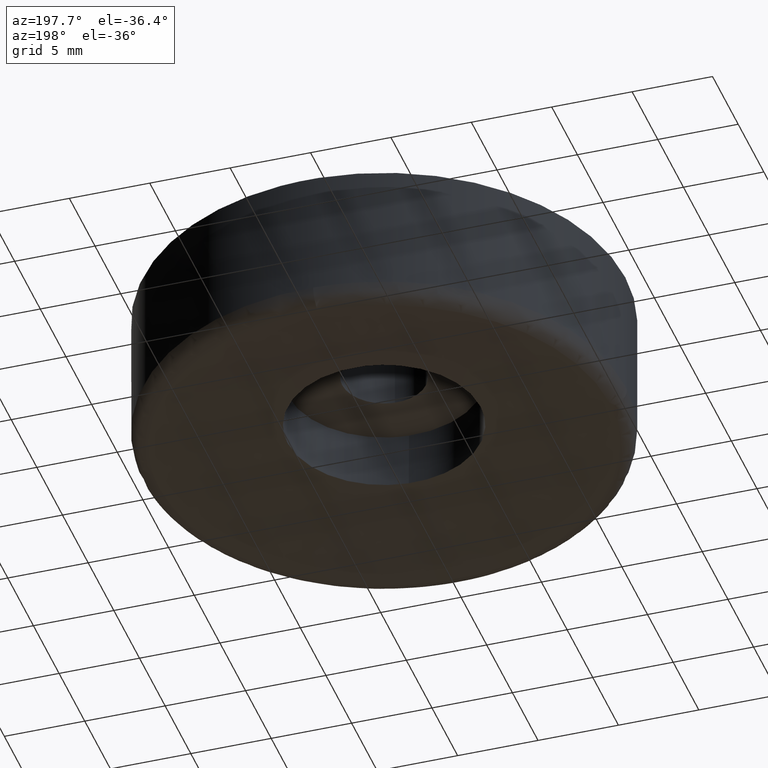
[diagram: clean part render]
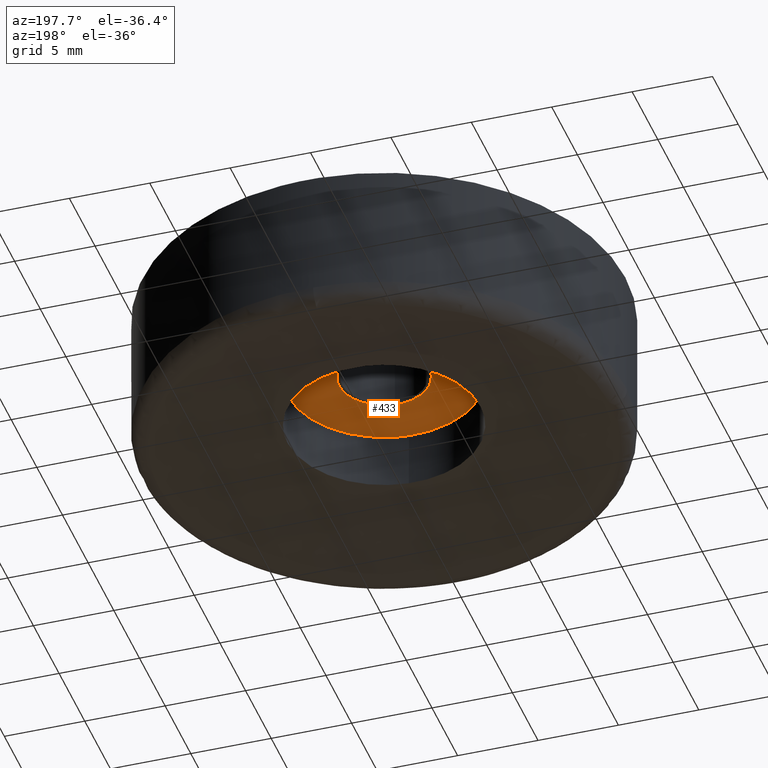
[diagram: same view with one face highlighted and labeled with its STEP entity id]
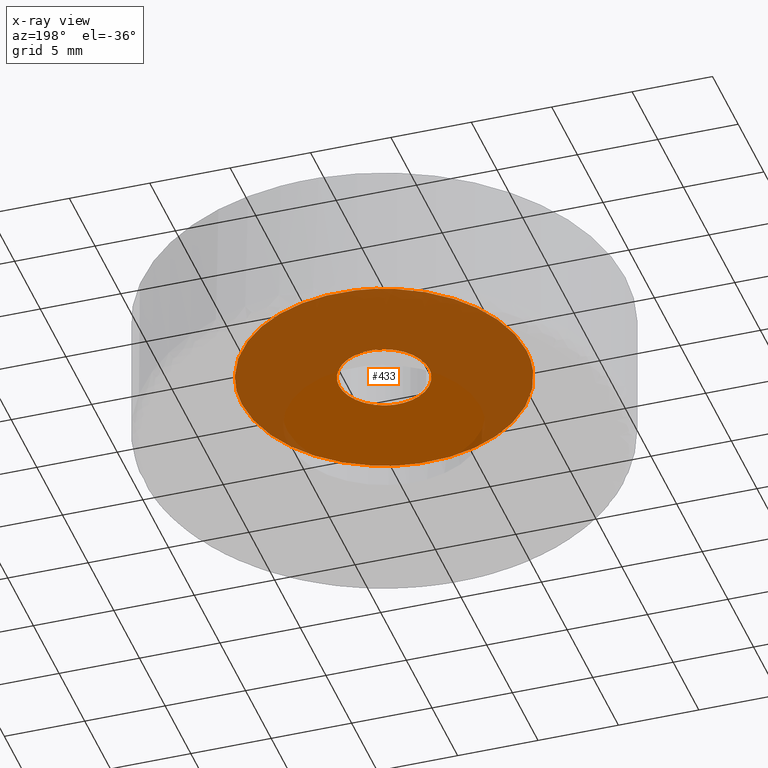
[diagram: x-ray of the same camera — body ghosted, the highlighted face saturated]
A machine part, auxiliary view. The second image highlights one B-rep face of the part: STEP entity #433.
The next image is the same camera in x-ray: the body ghosted, the highlighted face saturated — about 66% of this face is hidden behind the body in this view.
In plain terms, the highlighted face is a freeform B-spline surface patch.
Its self-contained STEP definition (entity closure, byte-faithful):
#66=CARTESIAN_POINT('',(-0.330495857061675,2.780426673815561,4.999999999999800));
#67=VERTEX_POINT('',#66);
#68=CARTESIAN_POINT('',(2.800000000000000,0.0,4.999999999999800));
#69=VERTEX_POINT('',#68);
#70=CARTESIAN_POINT('',(-0.330495857061675,2.780426673815561,4.999999999999801));
#71=CARTESIAN_POINT('',(-0.165827535048340,2.800000000000000,4.999999999999800));
#72=CARTESIAN_POINT('',(0.0,2.800000000000000,4.999999999999800));
#73=CARTESIAN_POINT('',(2.800000000000000,2.800000000000000,4.999999999999800));
#74=CARTESIAN_POINT('',(2.800000000000000,0.0,4.999999999999800));
#82=(BOUNDED_CURVE()B_SPLINE_CURVE(2,(#70,#71,#72,#73,#74),.UNSPECIFIED.,.F.,.U.)B_SPLINE_CURVE_WITH_KNOTS((3,2,3),(0.229562473512879,0.250000000000000,0.500000000000000),.UNSPECIFIED.)CURVE()GEOMETRIC_REPRESENTATION_ITEM()RATIONAL_B_SPLINE_CURVE((0.956026754182465,0.976055948330407,1.0,0.707106781186547,1.0))REPRESENTATION_ITEM(''));
#83=EDGE_CURVE('',#67,#69,#82,.T.);
#85=CARTESIAN_POINT('',(0.170935910712796,-2.794777435580298,4.999999999999799));
#86=VERTEX_POINT('',#85);
#87=CARTESIAN_POINT('',(2.800000000000000,0.0,4.999999999999800));
#88=CARTESIAN_POINT('',(2.799999999999999,-2.633976987307233,4.999999999999801));
#89=CARTESIAN_POINT('',(0.170935910712796,-2.794777435580297,4.999999999999799));
#97=(BOUNDED_CURVE()B_SPLINE_CURVE(2,(#87,#88,#89),.UNSPECIFIED.,.F.,.U.)B_SPLINE_CURVE_WITH_KNOTS((3,3),(0.500000000000000,0.739332962240091),.UNSPECIFIED.)CURVE()GEOMETRIC_REPRESENTATION_ITEM()RATIONAL_B_SPLINE_CURVE((1.0,0.719603993285365,0.976072041669178))REPRESENTATION_ITEM(''));
#98=EDGE_CURVE('',#69,#86,#97,.T.);
#165=CARTESIAN_POINT('',(-2.800000000000000,0.0,4.999999999999800));
#166=VERTEX_POINT('',#165);
#167=CARTESIAN_POINT('',(-2.800000000000000,0.0,4.999999999999800));
#168=CARTESIAN_POINT('',(-2.799999999999999,2.486888672622845,4.999999999999800));
#169=CARTESIAN_POINT('',(-0.330495857061675,2.780426673815561,4.999999999999800));
#177=(BOUNDED_CURVE()B_SPLINE_CURVE(2,(#167,#168,#169),.UNSPECIFIED.,.F.,.U.)B_SPLINE_CURVE_WITH_KNOTS((3,3),(0.0,0.229562473512879),.UNSPECIFIED.)CURVE()GEOMETRIC_REPRESENTATION_ITEM()RATIONAL_B_SPLINE_CURVE((1.0,0.731050832856140,0.956026754182465))REPRESENTATION_ITEM(''));
#178=EDGE_CURVE('',#166,#67,#177,.T.);
#212=CARTESIAN_POINT('',(0.170935910712796,-2.794777435580298,4.999999999999799));
#213=CARTESIAN_POINT('',(0.085547737251288,-2.800000000000001,4.999999999999801));
#214=CARTESIAN_POINT('',(0.0,-2.800000000000000,4.999999999999800));
#215=CARTESIAN_POINT('',(-2.800000000000000,-2.800000000000000,4.999999999999800));
#216=CARTESIAN_POINT('',(-2.800000000000000,0.0,4.999999999999800));
#224=(BOUNDED_CURVE()B_SPLINE_CURVE(2,(#212,#213,#214,#215,#216),.UNSPECIFIED.,.F.,.U.)B_SPLINE_CURVE_WITH_KNOTS((3,2,3),(0.739332962240092,0.750000000000000,1.0),.UNSPECIFIED.)CURVE()GEOMETRIC_REPRESENTATION_ITEM()RATIONAL_B_SPLINE_CURVE((0.976072041669180,0.987502787901183,1.0,0.707106781186547,1.0))REPRESENTATION_ITEM(''));
#225=EDGE_CURVE('',#86,#166,#224,.T.);
#252=CARTESIAN_POINT('',(-1.044592699997766,8.788135529849564,4.999999999999963));
#253=VERTEX_POINT('',#252);
#254=CARTESIAN_POINT('',(8.850000000000000,0.0,4.999999999999800));
#255=VERTEX_POINT('',#254);
#256=CARTESIAN_POINT('',(-1.044592699997766,8.788135529849564,4.999999999999963));
#257=CARTESIAN_POINT('',(-0.524128266240975,8.850000000000000,4.999999999999800));
#258=CARTESIAN_POINT('',(0.0,8.850000000000000,4.999999999999800));
#259=CARTESIAN_POINT('',(8.850000000000000,8.850000000000000,4.999999999999800));
#260=CARTESIAN_POINT('',(8.850000000000000,0.0,4.999999999999800));
#268=(BOUNDED_CURVE()B_SPLINE_CURVE(2,(#256,#257,#258,#259,#260),.UNSPECIFIED.,.F.,.U.)B_SPLINE_CURVE_WITH_KNOTS((3,2,3),(0.229562671145563,0.250000000000000,0.500000000000000),.UNSPECIFIED.)CURVE()GEOMETRIC_REPRESENTATION_ITEM()RATIONAL_B_SPLINE_CURVE((0.956027141550981,0.976056179871500,1.0,0.707106781186547,1.0))REPRESENTATION_ITEM(''));
#269=EDGE_CURVE('',#253,#255,#268,.T.);
#310=CARTESIAN_POINT('',(0.540268868188659,-8.833493620870005,4.999999999999591));
#311=VERTEX_POINT('',#310);
#317=CARTESIAN_POINT('',(8.850000000000000,0.0,4.999999999999800));
#318=CARTESIAN_POINT('',(8.849999999999998,-8.325258801650644,4.999999999999800));
#319=CARTESIAN_POINT('',(0.540268868188659,-8.833493620870005,4.999999999999591));
#327=(BOUNDED_CURVE()B_SPLINE_CURVE(2,(#317,#318,#319),.UNSPECIFIED.,.F.,.U.)B_SPLINE_CURVE_WITH_KNOTS((3,3),(0.500000000000000,0.739333171378503),.UNSPECIFIED.)CURVE()GEOMETRIC_REPRESENTATION_ITEM()RATIONAL_B_SPLINE_CURVE((1.0,0.719603748264474,0.976072489893016))REPRESENTATION_ITEM(''));
#328=EDGE_CURVE('',#255,#311,#327,.T.);
#351=CARTESIAN_POINT('',(-8.850000000000000,0.0,4.999999999999800));
#352=VERTEX_POINT('',#351);
#353=CARTESIAN_POINT('',(-8.850000000000000,0.0,4.999999999999800));
#354=CARTESIAN_POINT('',(-8.850000000000000,7.860353811151192,4.999999999999801));
#355=CARTESIAN_POINT('',(-1.044592699997766,8.788135529849564,4.999999999999963));
#363=(BOUNDED_CURVE()B_SPLINE_CURVE(2,(#353,#354,#355),.UNSPECIFIED.,.F.,.U.)B_SPLINE_CURVE_WITH_KNOTS((3,3),(0.0,0.229562671145563),.UNSPECIFIED.)CURVE()GEOMETRIC_REPRESENTATION_ITEM()RATIONAL_B_SPLINE_CURVE((1.0,0.731050601315048,0.956027141550981))REPRESENTATION_ITEM(''));
#364=EDGE_CURVE('',#352,#253,#363,.T.);
#366=CARTESIAN_POINT('',(0.540268868188659,-8.833493620870005,4.999999999999591));
#367=CARTESIAN_POINT('',(0.270386586835330,-8.850000000000001,4.999999999999800));
#368=CARTESIAN_POINT('',(0.0,-8.850000000000000,4.999999999999800));
#369=CARTESIAN_POINT('',(-8.850000000000000,-8.850000000000000,4.999999999999800));
#370=CARTESIAN_POINT('',(-8.850000000000000,0.0,4.999999999999800));
#378=(BOUNDED_CURVE()B_SPLINE_CURVE(2,(#366,#367,#368,#369,#370),.UNSPECIFIED.,.F.,.U.)B_SPLINE_CURVE_WITH_KNOTS((3,2,3),(0.739333171378503,0.750000000000000,1.0),.UNSPECIFIED.)CURVE()GEOMETRIC_REPRESENTATION_ITEM()RATIONAL_B_SPLINE_CURVE((0.976072489893016,0.987503032922073,1.0,0.707106781186547,1.0))REPRESENTATION_ITEM(''));
#379=EDGE_CURVE('',#311,#352,#378,.T.);
#416=CARTESIAN_POINT('',(-9.734115464158771,-9.733899896870152,4.999999999999800));
#417=CARTESIAN_POINT('',(9.734115464158771,-9.733899896870152,4.999999999999800));
#418=CARTESIAN_POINT('',(-9.734115464158771,9.733954018483656,4.999999999999800));
#419=CARTESIAN_POINT('',(9.734115464158771,9.733954018483656,4.999999999999800));
#420=B_SPLINE_SURFACE_WITH_KNOTS('',1,1,((#416,#418),(#417,#419)),.UNSPECIFIED.,.F.,.F.,.U.,(2,2),(2,2),(0.0,19.468230928317539),(0.0,19.467853915353810),.UNSPECIFIED.);
#421=ORIENTED_EDGE('',*,*,#364,.T.);
#422=ORIENTED_EDGE('',*,*,#269,.T.);
#423=ORIENTED_EDGE('',*,*,#328,.T.);
#424=ORIENTED_EDGE('',*,*,#379,.T.);
#425=EDGE_LOOP('',(#421,#422,#423,#424));
#426=FACE_OUTER_BOUND('',#425,.T.);
#427=ORIENTED_EDGE('',*,*,#98,.F.);
#428=ORIENTED_EDGE('',*,*,#83,.F.);
#429=ORIENTED_EDGE('',*,*,#178,.F.);
#430=ORIENTED_EDGE('',*,*,#225,.F.);
#431=EDGE_LOOP('',(#427,#428,#429,#430));
#432=FACE_BOUND('',#431,.T.);
#433=ADVANCED_FACE('',(#426,#432),#420,.F.);